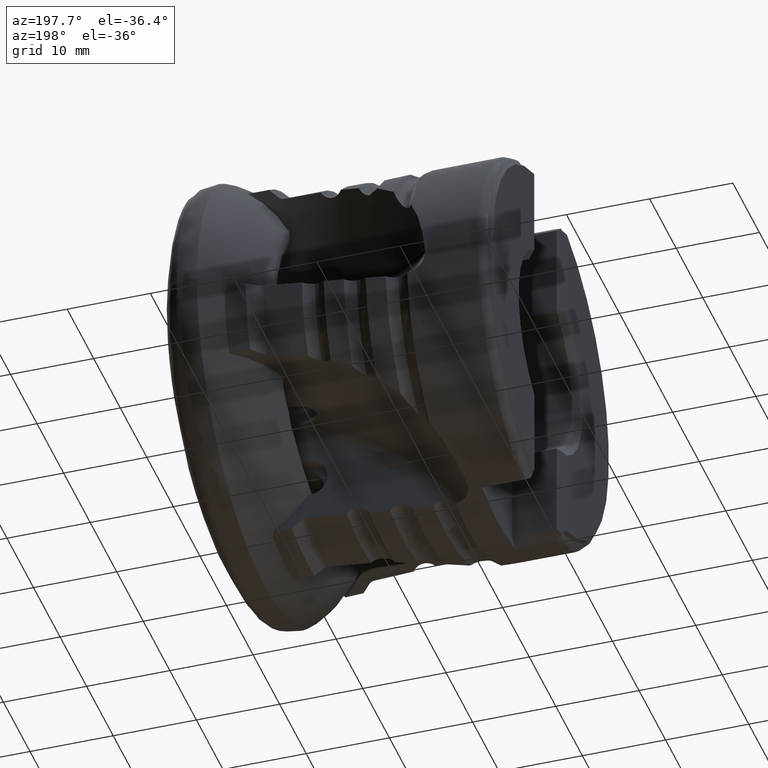
[diagram: clean part render]
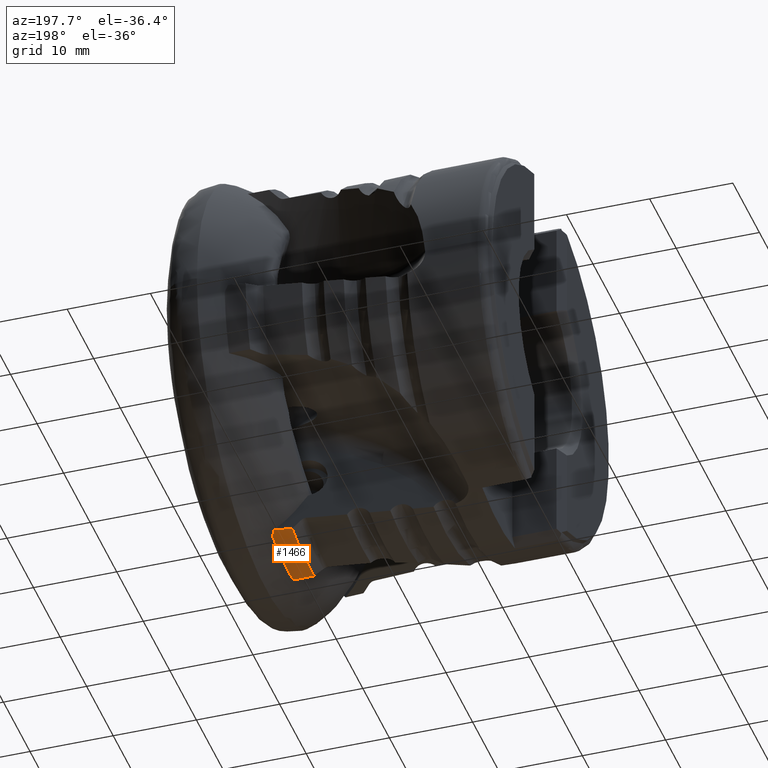
[diagram: same view with one face highlighted and labeled with its STEP entity id]
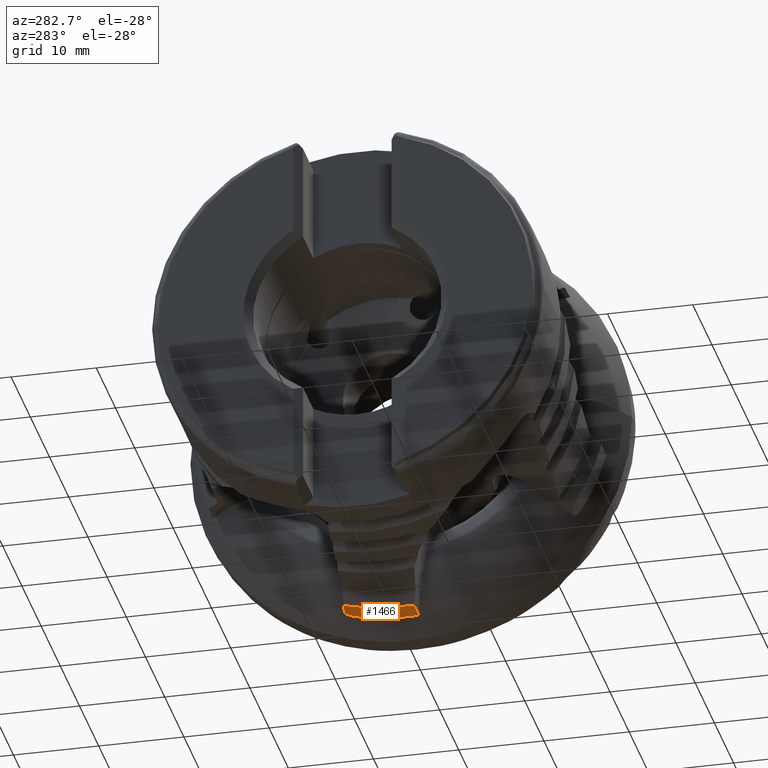
[diagram: same view with one face highlighted and labeled with its STEP entity id]
A machine part, auxiliary view. The second image highlights one B-rep face of the part: STEP entity #1466.
A second angle (auxiliary view) of the same face is appended — the face is thin or edge-on in the first view.
In plain terms, the highlighted cylindrical surface (partial cylindrical patch) has radius 24.2955 mm, axis along (1, 0, -0).
Its self-contained STEP definition (entity closure, byte-faithful):
#853 = VERTEX_POINT ( 'NONE', #10316 ) ;
#1086 = VERTEX_POINT ( 'NONE', #11015 ) ;
#1466 = ADVANCED_FACE ( 'NONE', ( #8022 ), #8030, .T. ) ;
#1607 = CARTESIAN_POINT ( 'NONE',  ( -9.806464620729793000, -1.512325569762563300, -24.24838624923024700 ) ) ;
#1611 = CARTESIAN_POINT ( 'NONE',  ( -10.04799999999994700, -1.518951168221162500, -24.24797120582590200 ) ) ;
#1612 = CARTESIAN_POINT ( 'NONE',  ( -7.519840393448348900, 6.180595860591086700, -23.49620299235696000 ) ) ;
#1613 = CARTESIAN_POINT ( 'NONE',  ( -7.657699071139833600, 6.471670050213249100, -23.41963692199657000 ) ) ;
#1614 = CARTESIAN_POINT ( 'NONE',  ( -9.564815135252249700, -1.509018445764125100, -24.24859137311576900 ) ) ;
#1615 = CARTESIAN_POINT ( 'NONE',  ( -9.323188542644878400, -1.509018445764124500, -24.24859137311575800 ) ) ;
#1616 = CARTESIAN_POINT ( 'NONE',  ( 7.086295335222405500E-017, -1.509018445764123600, -24.24859137311575800 ) ) ;
#1617 = DIRECTION ( 'NONE',  ( -1.000000000000000000, -1.224606353822377000E-016, 0.0000000000000000000 ) ) ;
#1621 = CARTESIAN_POINT ( 'NONE',  ( -7.799508743127180600, 6.759450252353956600, -23.33816070810113500 ) ) ;
#1622 = CARTESIAN_POINT ( 'NONE',  ( -7.944552345648312500, 7.044309839321779300, -23.25186055216566000 ) ) ;
#4244 = EDGE_LOOP ( 'NONE', ( #11401, #11402, #11403, #11404, #11405, #11406 ) ) ;
#4635 = VERTEX_POINT ( 'NONE', #10354 ) ;
#4637 = VERTEX_POINT ( 'NONE', #10356 ) ;
#4662 = VERTEX_POINT ( 'NONE', #10381 ) ;
#4943 = B_SPLINE_CURVE_WITH_KNOTS ( 'NONE', 3,
 ( #1611, #1607, #1614, #1615 ),
 .UNSPECIFIED., .F., .F.,
 ( 4, 4 ),
 ( 5.031118658422447100E-017, 0.0007248797778225911600 ),
 .UNSPECIFIED. ) ;
#4944 = B_SPLINE_CURVE_WITH_KNOTS ( 'NONE', 3,
 ( #1612, #1613, #1621, #1622 ),
 .UNSPECIFIED., .F., .F.,
 ( 4, 4 ),
 ( 0.0007429201345248682400, 0.001735927660228901200 ),
 .UNSPECIFIED. ) ;
#4987 =( BOUNDED_CURVE ( )  B_SPLINE_CURVE ( 3, ( #10810, #10825, #10830, #10831 ),
 .UNSPECIFIED., .F., .F. ) 
 B_SPLINE_CURVE_WITH_KNOTS ( ( 4, 4 ),
 ( 4.995467108449133800, 5.006556245559940200 ),
 .UNSPECIFIED. ) 
 CURVE ( )  GEOMETRIC_REPRESENTATION_ITEM ( )  RATIONAL_B_SPLINE_CURVE ( ( 1.000000000000000000, 0.9999897526127636800, 0.9999897526127636800, 1.000000000000000000 ) ) 
 REPRESENTATION_ITEM ( '' )  );
#5407 = CARTESIAN_POINT ( 'NONE',  ( -7.519840393448348000, -1.921677376888055900E-015, 0.0000000000000000000 ) ) ;
#5408 = DIRECTION ( 'NONE',  ( -1.000000000000000000, -1.224465362759121100E-016, 0.0000000000000000000 ) ) ;
#5410 = DIRECTION ( 'NONE',  ( -1.071015296645556100E-016, 1.000000000000000000, 0.0000000000000000000 ) ) ;
#6810 = AXIS2_PLACEMENT_3D ( 'NONE', #9025, #9026, #9024 ) ;
#6954 = AXIS2_PLACEMENT_3D ( 'NONE', #10826, #10827, #10828 ) ;
#7058 = AXIS2_PLACEMENT_3D ( 'NONE', #5407, #5408, #5410 ) ;
#7365 = VERTEX_POINT ( 'NONE', #10667 ) ;
#8022 = FACE_OUTER_BOUND ( 'NONE', #4244, .T. ) ;
#8030 = CYLINDRICAL_SURFACE ( 'NONE', #6810, 24.29550000000000100 ) ;
#8316 = CIRCLE ( 'NONE', #6954, 24.29550000000000100 ) ;
#8353 = LINE ( 'NONE', #1616, #8354 ) ;
#8354 = VECTOR ( 'NONE', #1617, 1000.000000000000000 ) ;
#8573 = CIRCLE ( 'NONE', #7058, 24.29549999999999700 ) ;
#9024 = DIRECTION ( 'NONE',  ( -1.224606353822377000E-016, 1.000000000000000000, 0.0000000000000000000 ) ) ;
#9025 = CARTESIAN_POINT ( 'NONE',  ( 0.0000000000000000000, 0.0000000000000000000, 0.0000000000000000000 ) ) ;
#9026 = DIRECTION ( 'NONE',  ( 1.000000000000000000, 1.224606353822377000E-016, -0.0000000000000000000 ) ) ;
#9463 = EDGE_CURVE ( 'NONE', #7365, #4637, #8316, .T. ) ;
#9464 = EDGE_CURVE ( 'NONE', #4637, #4662, #4987, .T. ) ;
#9492 = EDGE_CURVE ( 'NONE', #7365, #4635, #4943, .T. ) ;
#9493 = EDGE_CURVE ( 'NONE', #1086, #4635, #8353, .T. ) ;
#9494 = EDGE_CURVE ( 'NONE', #853, #4662, #4944, .T. ) ;
#9795 = EDGE_CURVE ( 'NONE', #853, #1086, #8573, .T. ) ;
#10316 = CARTESIAN_POINT ( 'NONE',  ( -7.519840393448348900, 6.180595860591086700, -23.49620299235696000 ) ) ;
#10354 = CARTESIAN_POINT ( 'NONE',  ( -9.323188542644878400, -1.509018445764124500, -24.24859137311575800 ) ) ;
#10356 = CARTESIAN_POINT ( 'NONE',  ( -10.04800000000000000, 6.786038942699959400, -23.32854465495350400 ) ) ;
#10381 = CARTESIAN_POINT ( 'NONE',  ( -7.944552345648312500, 7.044309839321779300, -23.25186055216566000 ) ) ;
#10667 = CARTESIAN_POINT ( 'NONE',  ( -10.04799999999994700, -1.518951168221162500, -24.24797120582590200 ) ) ;
#10810 = CARTESIAN_POINT ( 'NONE',  ( -10.04800000000000000, 6.786038942699959400, -23.32854465495350400 ) ) ;
#10825 = CARTESIAN_POINT ( 'NONE',  ( -9.345700096683902600, 6.872270527950779400, -23.30346075433913100 ) ) ;
#10826 = CARTESIAN_POINT ( 'NONE',  ( -10.04799999999999800, -1.230484464320724100E-015, 0.0000000000000000000 ) ) ;
#10827 = DIRECTION ( 'NONE',  ( 1.000000000000000000, 1.224606353822377000E-016, -0.0000000000000000000 ) ) ;
#10828 = DIRECTION ( 'NONE',  ( -1.428020395527407900E-016, 1.000000000000000000, 0.0000000000000000000 ) ) ;
#10830 = CARTESIAN_POINT ( 'NONE',  ( -8.644543693541052700, 6.958361709034933900, -23.27789912480508900 ) ) ;
#10831 = CARTESIAN_POINT ( 'NONE',  ( -7.944552345648312500, 7.044309839321779300, -23.25186055216566000 ) ) ;
#11015 = CARTESIAN_POINT ( 'NONE',  ( -7.519840393448329300, -1.509018445764122500, -24.24859137311576200 ) ) ;
#11401 = ORIENTED_EDGE ( 'NONE', *, *, #9494, .F. ) ;
#11402 = ORIENTED_EDGE ( 'NONE', *, *, #9795, .T. ) ;
#11403 = ORIENTED_EDGE ( 'NONE', *, *, #9493, .T. ) ;
#11404 = ORIENTED_EDGE ( 'NONE', *, *, #9492, .F. ) ;
#11405 = ORIENTED_EDGE ( 'NONE', *, *, #9463, .T. ) ;
#11406 = ORIENTED_EDGE ( 'NONE', *, *, #9464, .T. ) ;